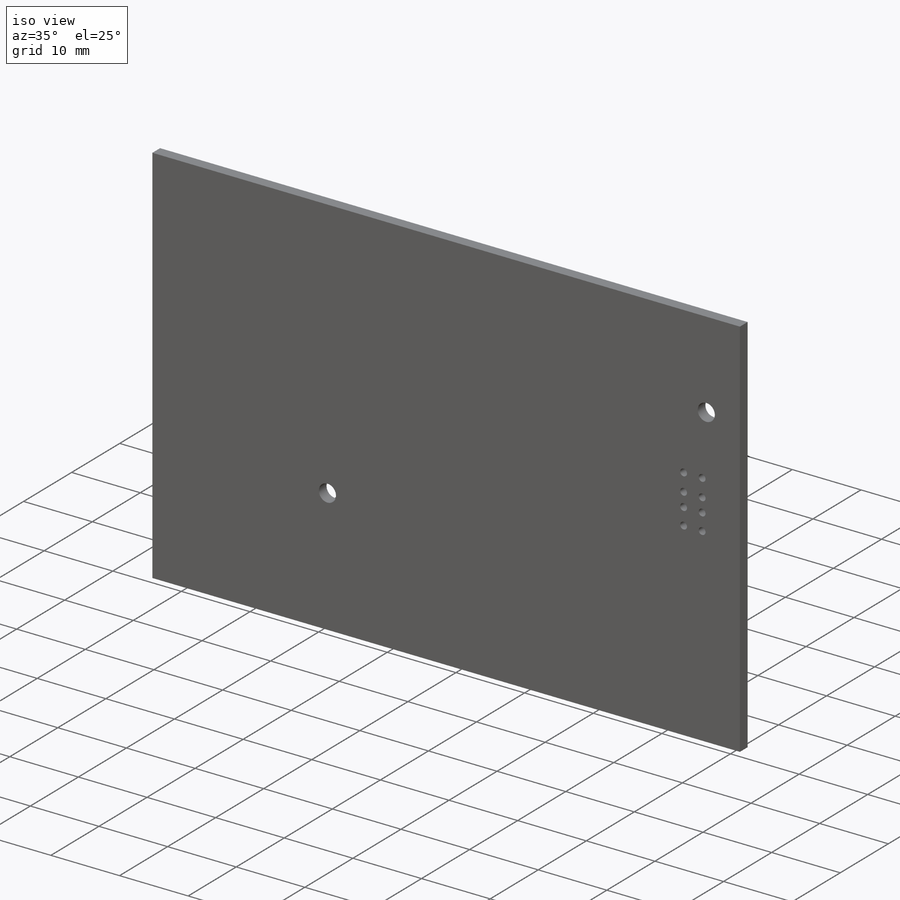
[diagram: iso view]
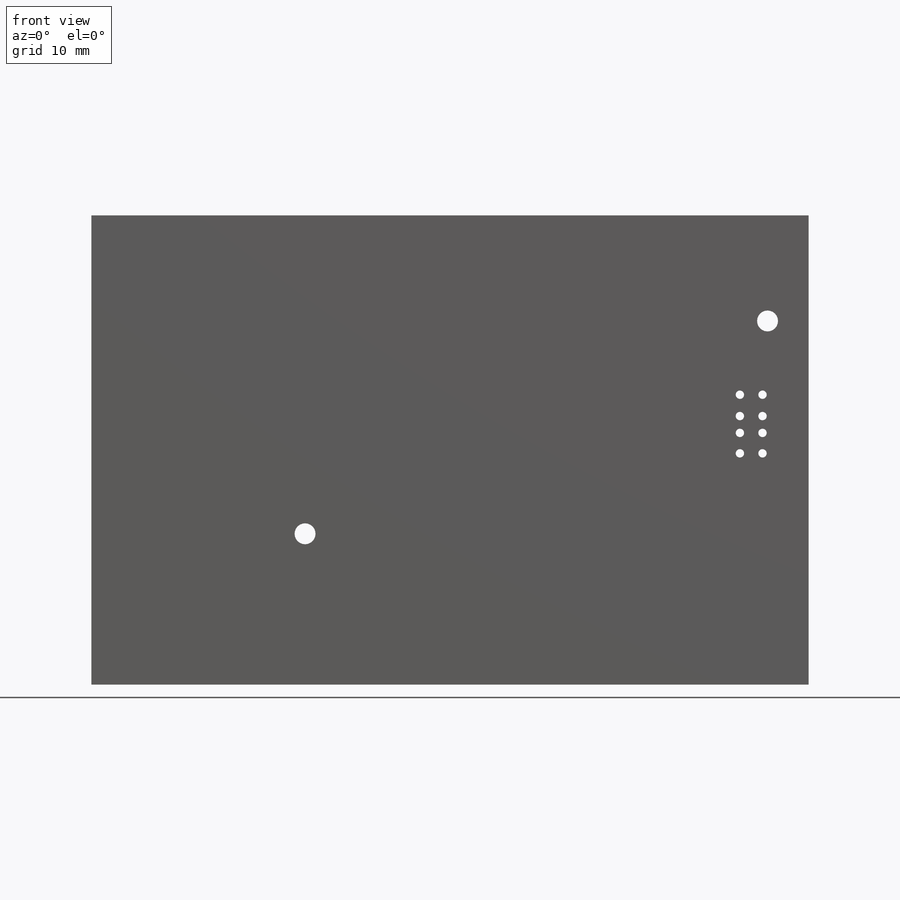
[diagram: front view]
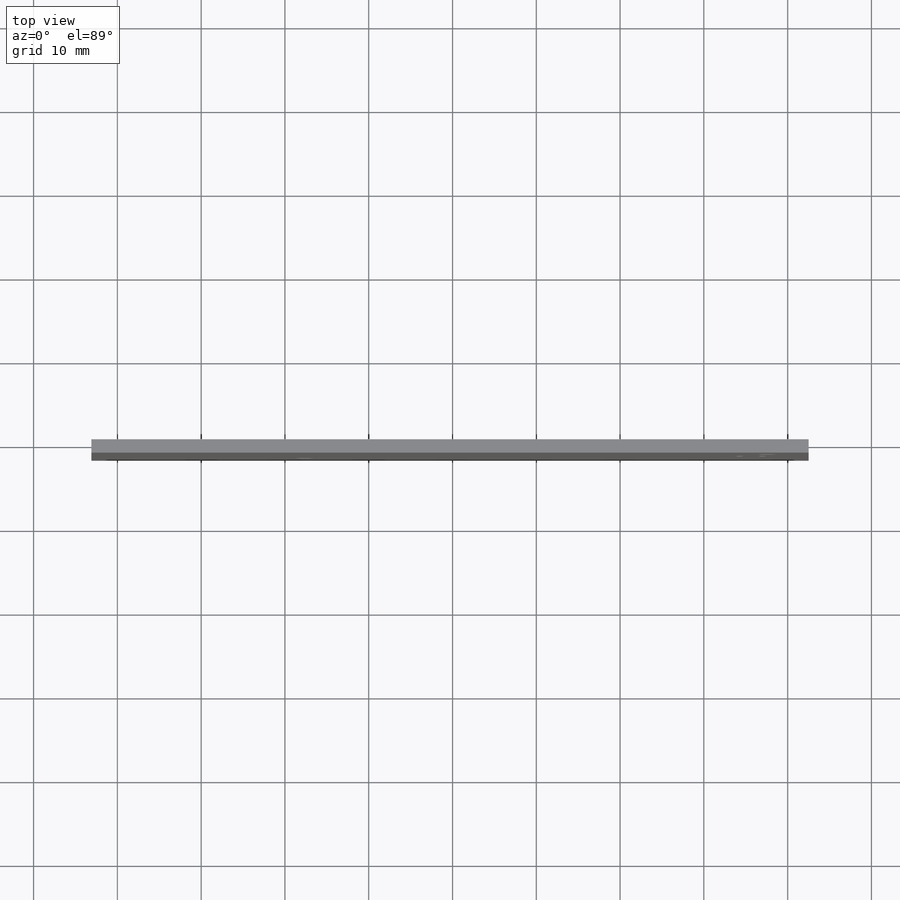
[diagram: top view]
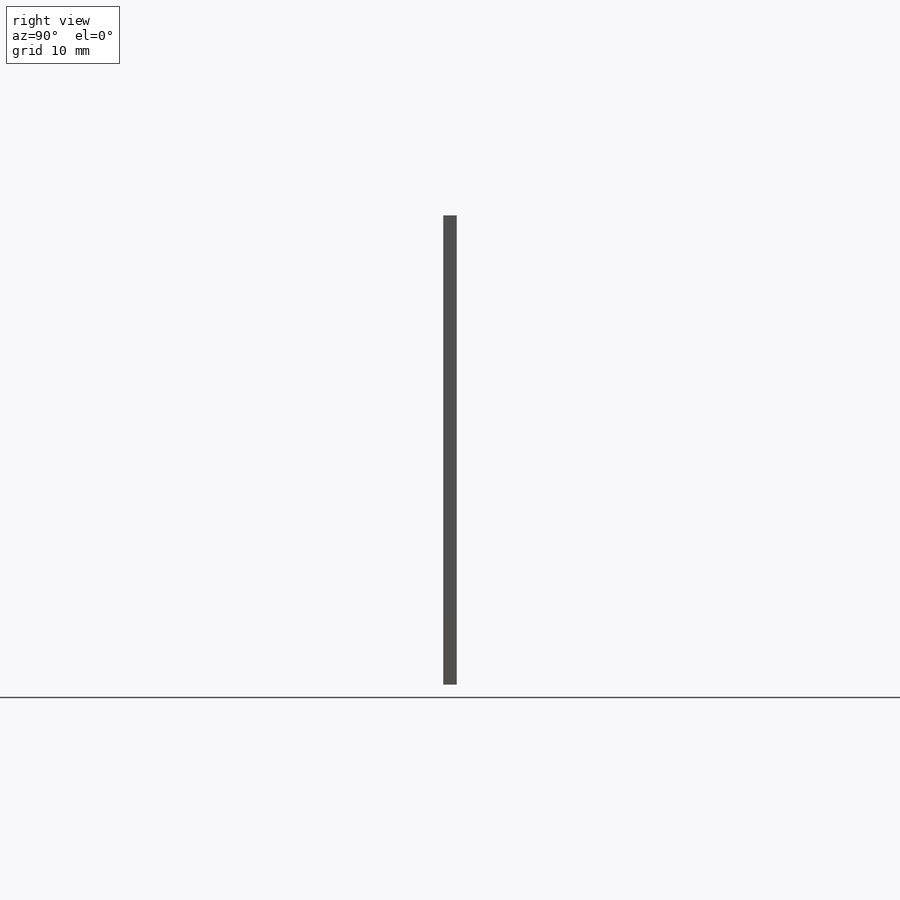
[diagram: right view]
SOLIDWORKS PART (.sldprt)
format: sldprt  version: not decoded by parser v0  size: 1,027,584 bytes
history: native  units: mm
features: plane x4, sketch x3, cut_extrude x2, material x1, extrude x1 (+9 scaffold rows collapsed)
feature tree (20):
  scaffold x9  (default folders/planes/origin — collapsed)
  material  "Material <not specified>"
  plane  "Plano frontal"
  plane  "Plano superior"
  plane  "Plano direito"
  plane  "Plano1"
  sketch  "Esboço1"  dims[D1=85.6mm D2=56.0mm]
  extrude  "Ressalto-extrusão1"  Depth=1.6mm
  sketch  "Esboço2"  dims[c1.D1=2.0mm c1.D3=2.0mm c1.D4=2.0mm c1.D5=2.0mm c1.D10=1.096mm c1.D12=~0.989048mm c1.D13=2.0mm c1.D14=1.096mm c1.D15=~1.005537mm c1.D16=1.0mm c1.D2=2.78mm c2.D3=2.78mm c2.D4=8.5mm c2.D5=8.5mm c2.D6=9.66mm c2.D7=9.66mm c2.D8=3.5mm c2.D9=3.5mm c2.D10=5.5mm c2.D11=6.6mm c2.D12=2.7mm c2.D13=3.1mm c2.D14=2.55mm c2.D15=2.44mm]
  cut_extrude  "Corte-extrusão1"  Depth=2mm
  sketch  "Esboço3"  dims[c1.D2=~4.328988mm c1.D4=~6.753221mm c1.D5=2.5mm c1.D6=2.5mm c1.D1=4.9mm c2.D2=12.6mm c2.D3=25.5mm c2.D4=18.0mm]
  cut_extrude  "Corte-extrusão2"  Depth=10mm
decode coverage: 6 of 6 modeling features carry decoded parameters
note: ~ marks probable driven/reference dimensions
note: suppression state not decoded; provenance and decode notes live in map.json
